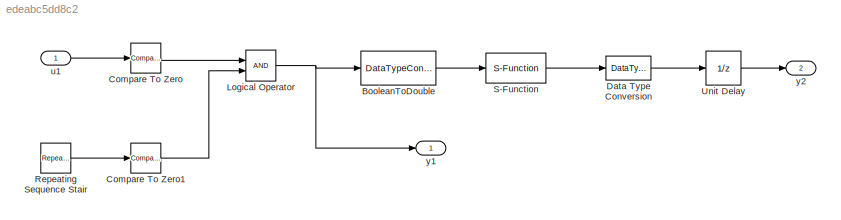
MODEL slx_edeabc5dd8c2
KIND model
BLOCK [DataTypeConversion] BooleanToDouble
  OutDataTypeStr = double
  RndMeth = Floor
  SaturateOnIntegerOverflow = off
BLOCK [Reference] Compare To Zero  REF=simulink/Logic and Bit
Operations/Compare
To Zero
  OutDataTypeStr = boolean
  Ports = [1, 1]
  SourceBlock = simulink/Logic and Bit\nOperations/Compare\nTo Zero
  SourceType = Compare To Zero
  ZeroCross = on
  relop = <=
BLOCK [Reference] Compare To Zero1  REF=simulink/Logic and Bit
Operations/Compare
To Zero
  OutDataTypeStr = boolean
  Ports = [1, 1]
  SourceBlock = simulink/Logic and Bit\nOperations/Compare\nTo Zero
  SourceType = Compare To Zero
  ZeroCross = on
  relop = <=
BLOCK [DataTypeConversion] Data Type Conversion
  OutDataTypeStr = int32
  RndMeth = Floor
  SaturateOnIntegerOverflow = off
BLOCK [Logic] Logical Operator
  AllPortsSameDT = off
  OutDataTypeStr = boolean
  Ports = [2, 1]
BLOCK [Reference] Repeating Sequence Stair  REF=simulink/Sources/Repeating
Sequence
Stair
  ConRadixGroup = Best Precision: Vector-wise
  LockScale = off
  OutDataType = fixdt(0,8)
  OutDataTypeStr = double
  OutMax = []
  OutMin = []
  OutScaling = 2^-12
  OutValues = [3 1 4 2 1].'
  OutputDataTypeScalingMode = double
  Ports = [0, 1]
  SourceBlock = simulink/Sources/Repeating\nSequence\nStair
  SourceType = Repeating Sequence Stair
  tsamp = -1
BLOCK [S-Function] S-Function
  EnableBusSupport = off
  FunctionName = timesthree
  Ports = [1, 1]
BLOCK [UnitDelay] Unit Delay
  SampleTime = 0.1
BLOCK [Inport] u1
  IconDisplay = Port number
BLOCK [Outport] y1
  IconDisplay = Port number
BLOCK [Outport] y2
  IconDisplay = Port number
  Port = 2
LINE BooleanToDouble:1 -> S-Function:1
LINE Compare To Zero1:1 -> Logical Operator:2
LINE Compare To Zero:1 -> Logical Operator:1
LINE Data Type Conversion:1 -> Unit Delay:1
NET Logical Operator:1 -> BooleanToDouble:1, y1:1
LINE Repeating Sequence Stair:1 -> Compare To Zero1:1
LINE S-Function:1 -> Data Type Conversion:1
LINE Unit Delay:1 -> y2:1
LINE u1:1 -> Compare To Zero:1
note: NET lines group one-source signal fan-out (src -> all destinations, sorted); 1:1 wires keep LINE
